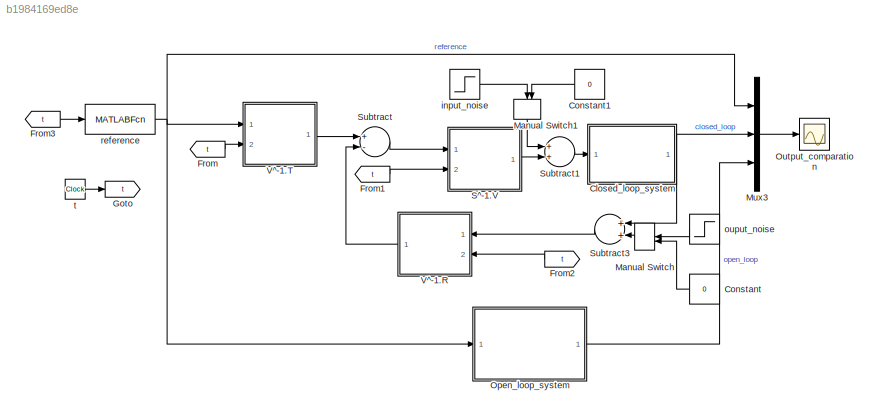
MODEL slx_b1984169ed8e
KIND model
CONFIG AbsTol = auto
CONFIG EnableMultiTasking = off
CONFIG FixedStep = auto
CONFIG MaxStep = auto
CONFIG MinStep = auto
CONFIG RelTol = 1e-3
CONFIG SampleTimeConstraint = Unconstrained
CONFIG Solver = VariableStepAuto
CONFIG SolverName = VariableStepAuto
CONFIG StartTime = 0.0
CONFIG StopTime = 500
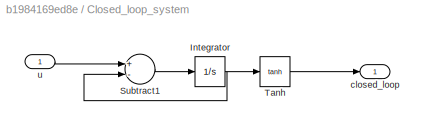
BLOCK [SubSystem] Closed_loop_system
  Ports = [1, 1]
  RequestExecContextInheritance = off
BLOCK [Integrator] Closed_loop_system/Integrator
  Ports = [1, 1]
BLOCK [Sum] Closed_loop_system/Subtract1
  InputSameDT = off
  Inputs = +-
  OutDataTypeStr = Inherit: Inherit via internal rule
  Ports = [2, 1]
  SaturateOnIntegerOverflow = off
BLOCK [Trigonometry] Closed_loop_system/Tanh
  Operator = tanh
  Ports = [1, 1]
BLOCK [Outport] Closed_loop_system/closed_loop
  IconDisplay = Port number
BLOCK [Inport] Closed_loop_system/u
  IconDisplay = Port number
BLOCK [Constant] Constant
  Value = 0
BLOCK [Constant] Constant1
  Value = 0
BLOCK [From] From
  GotoTag = t
BLOCK [From] From1
  GotoTag = t
BLOCK [From] From2
  GotoTag = t
BLOCK [From] From3
  GotoTag = t
BLOCK [Goto] Goto
  GotoTag = t
BLOCK [ManualSwitch] Manual Switch
BLOCK [ManualSwitch] Manual Switch1
BLOCK [Mux] Mux3
  DisplayOption = bar
  Inputs = 3
  Ports = [3, 1]
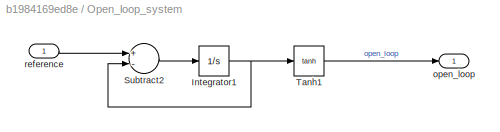
BLOCK [SubSystem] Open_loop_system
  Ports = [1, 1]
  RequestExecContextInheritance = off
BLOCK [Integrator] Open_loop_system/Integrator1
  Ports = [1, 1]
BLOCK [Sum] Open_loop_system/Subtract2
  InputSameDT = off
  Inputs = +-
  OutDataTypeStr = Inherit: Inherit via internal rule
  Ports = [2, 1]
  SaturateOnIntegerOverflow = off
BLOCK [Trigonometry] Open_loop_system/Tanh1
  Operator = tanh
  Ports = [1, 1]
BLOCK [Outport] Open_loop_system/open_loop
  IconDisplay = Port number
BLOCK [Inport] Open_loop_system/reference
  IconDisplay = Port number
BLOCK [Scope] Output_comparation
  Floating = off
  NumInputPorts = 1
  Ports = [1]
  ScopeSpecificationString = Simulink.scopes.TimeScopeBlockCfg('CurrentConfiguration', extmgr.ConfigurationSet(extmgr.Configuration('Core','General UI',true),extmgr.Configuration('Core','Source UI',true),extmgr.Configuration('Sources','WiredSimulink',true,'DataLoggingVariableName','ScopeData1'),extmgr.Configuration('Visuals','Time Domain',true,'SerializedDisplays',{struct('MinYLimReal','-0.11294','MaxYLimReal','1.0165','YLabe...<+1440ch>
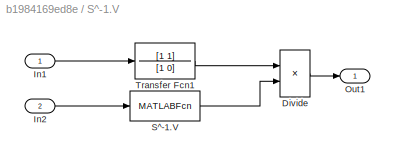
BLOCK [SubSystem] S^-1.V
  Ports = [2, 1]
  RequestExecContextInheritance = off
BLOCK [Product] S^-1.V/Divide
  InputSameDT = off
  Inputs = */
  OutDataTypeStr = Inherit: Inherit via internal rule
  Ports = [2, 1]
  RndMeth = Floor
  SaturateOnIntegerOverflow = off
BLOCK [Inport] S^-1.V/In1
  IconDisplay = Port number
BLOCK [Inport] S^-1.V/In2
  IconDisplay = Port number
  Port = 2
BLOCK [Outport] S^-1.V/Out1
  IconDisplay = Port number
BLOCK [MATLABFcn] S^-1.V/S^-1.V
  MATLABFcn = S_1_transfer
  OutputDimensions = 1
  Ports = [1, 1]
BLOCK [TransferFcn] S^-1.V/Transfer Fcn1
  Denominator = [1 0]
  Numerator = [1 1]
BLOCK [Sum] Subtract
  InputSameDT = off
  Inputs = +-
  OutDataTypeStr = Inherit: Inherit via internal rule
  Ports = [2, 1]
  SaturateOnIntegerOverflow = off
BLOCK [Sum] Subtract1
  InputSameDT = off
  OutDataTypeStr = Inherit: Inherit via internal rule
  Ports = [2, 1]
  SaturateOnIntegerOverflow = off
BLOCK [Sum] Subtract3
  InputSameDT = off
  OutDataTypeStr = Inherit: Inherit via internal rule
  Ports = [2, 1]
  SaturateOnIntegerOverflow = off
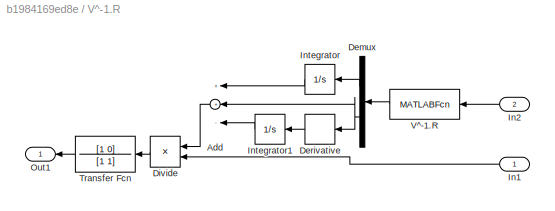
BLOCK [SubSystem] V^-1.R
  Ports = [2, 1]
  RequestExecContextInheritance = off
BLOCK [Sum] V^-1.R/Add
  InputSameDT = off
  Inputs = ++-
  OutDataTypeStr = Inherit: Inherit via internal rule
  Ports = [3, 1]
  SaturateOnIntegerOverflow = off
BLOCK [Demux] V^-1.R/Demux
  DisplayOption = bar
  Outputs = 2
  Ports = [1, 2]
BLOCK [Derivative] V^-1.R/Derivative
BLOCK [Product] V^-1.R/Divide
  InputSameDT = off
  Inputs = **
  OutDataTypeStr = Inherit: Inherit via internal rule
  Ports = [2, 1]
  RndMeth = Floor
  SaturateOnIntegerOverflow = off
BLOCK [Inport] V^-1.R/In1
  IconDisplay = Port number
BLOCK [Inport] V^-1.R/In2
  IconDisplay = Port number
  Port = 2
BLOCK [Integrator] V^-1.R/Integrator
  Ports = [1, 1]
BLOCK [Integrator] V^-1.R/Integrator1
  Ports = [1, 1]
BLOCK [Outport] V^-1.R/Out1
  IconDisplay = Port number
BLOCK [TransferFcn] V^-1.R/Transfer Fcn
  Denominator = [1 1]
  Numerator = [1 0]
BLOCK [MATLABFcn] V^-1.R/V^-1.R
  MATLABFcn = R_transfer
  Ports = [1, 1]
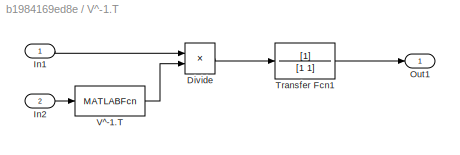
BLOCK [SubSystem] V^-1.T
  Ports = [2, 1]
  RequestExecContextInheritance = off
BLOCK [Product] V^-1.T/Divide
  InputSameDT = off
  Inputs = **
  OutDataTypeStr = Inherit: Inherit via internal rule
  Ports = [2, 1]
  RndMeth = Floor
  SaturateOnIntegerOverflow = off
BLOCK [Inport] V^-1.T/In1
  IconDisplay = Port number
BLOCK [Inport] V^-1.T/In2
  IconDisplay = Port number
  Port = 2
BLOCK [Outport] V^-1.T/Out1
  IconDisplay = Port number
BLOCK [TransferFcn] V^-1.T/Transfer Fcn1
  Denominator = [1 1]
BLOCK [MATLABFcn] V^-1.T/V^-1.T
  MATLABFcn = T_transfer
  OutputDimensions = 1
  Ports = [1, 1]
BLOCK [Step] input_noise
  After = 5
  SampleTime = 0
  Time = 100
BLOCK [Step] ouput_noise
  After = 0.09
  SampleTime = 0
  Time = 200
BLOCK [MATLABFcn] reference
  MATLABFcn = reference
  OutputDimensions = 1
  Ports = [1, 1]
BLOCK [Clock] t
NET Closed_loop_system/Integrator:1 -> Closed_loop_system/Subtract1:2, Closed_loop_system/Tanh:1
LINE Closed_loop_system/Subtract1:1 -> Closed_loop_system/Integrator:1
LINE Closed_loop_system/Tanh:1 -> Closed_loop_system/closed_loop:1
LINE Closed_loop_system/u:1 -> Closed_loop_system/Subtract1:1
NET Closed_loop_system:1 -> Mux3:2, Subtract3:1
LINE Constant1:1 -> Manual Switch1:2
LINE Constant:1 -> Manual Switch:2
LINE From1:1 -> S^-1.V:2
LINE From2:1 -> V^-1.R:2
LINE From3:1 -> reference:1
LINE From:1 -> V^-1.T:2
LINE Manual Switch1:1 -> Subtract1:1
LINE Manual Switch:1 -> Subtract3:2
LINE Mux3:1 -> Output_comparation:1
NET Open_loop_system/Integrator1:1 -> Open_loop_system/Subtract2:2, Open_loop_system/Tanh1:1
LINE Open_loop_system/Subtract2:1 -> Open_loop_system/Integrator1:1
LINE Open_loop_system/Tanh1:1 -> Open_loop_system/open_loop:1
LINE Open_loop_system/reference:1 -> Open_loop_system/Subtract2:1
LINE Open_loop_system:1 -> Mux3:3
LINE S^-1.V/Divide:1 -> S^-1.V/Out1:1
LINE S^-1.V/In1:1 -> S^-1.V/Transfer Fcn1:1
LINE S^-1.V/In2:1 -> S^-1.V/S^-1.V:1
LINE S^-1.V/S^-1.V:1 -> S^-1.V/Divide:2
LINE S^-1.V/Transfer Fcn1:1 -> S^-1.V/Divide:1
LINE S^-1.V:1 -> Subtract1:2
LINE Subtract1:1 -> Closed_loop_system:1
LINE Subtract3:1 -> V^-1.R:1
LINE Subtract:1 -> S^-1.V:1
LINE V^-1.R/Add:1 -> V^-1.R/Divide:1
LINE V^-1.R/Demux:1 -> V^-1.R/Integrator:1
NET V^-1.R/Demux:2 -> V^-1.R/Add:2, V^-1.R/Derivative:1
LINE V^-1.R/Derivative:1 -> V^-1.R/Integrator1:1
LINE V^-1.R/Divide:1 -> V^-1.R/Transfer Fcn:1
LINE V^-1.R/In1:1 -> V^-1.R/Divide:2
LINE V^-1.R/In2:1 -> V^-1.R/V^-1.R:1
LINE V^-1.R/Integrator1:1 -> V^-1.R/Add:3
LINE V^-1.R/Integrator:1 -> V^-1.R/Add:1
LINE V^-1.R/Transfer Fcn:1 -> V^-1.R/Out1:1
LINE V^-1.R/V^-1.R:1 -> V^-1.R/Demux:1
LINE V^-1.R:1 -> Subtract:2
LINE V^-1.T/Divide:1 -> V^-1.T/Transfer Fcn1:1
LINE V^-1.T/In1:1 -> V^-1.T/Divide:1
LINE V^-1.T/In2:1 -> V^-1.T/V^-1.T:1
LINE V^-1.T/Transfer Fcn1:1 -> V^-1.T/Out1:1
LINE V^-1.T/V^-1.T:1 -> V^-1.T/Divide:2
LINE V^-1.T:1 -> Subtract:1
LINE input_noise:1 -> Manual Switch1:1
LINE ouput_noise:1 -> Manual Switch:1
NET reference:1 -> Mux3:1, Open_loop_system:1, V^-1.T:1
LINE t:1 -> Goto:1
note: NET lines group one-source signal fan-out (src -> all destinations, sorted); 1:1 wires keep LINE
